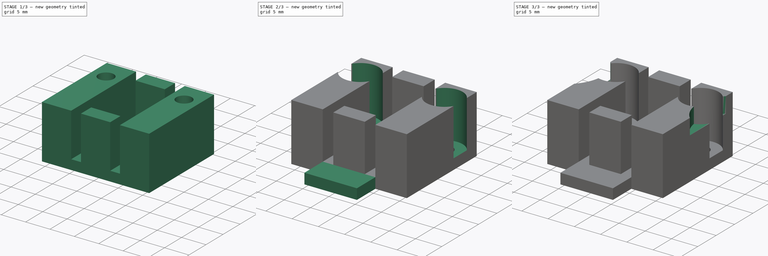
[diagram: build sequence overview — one tinted view per stage of 3, left to right]
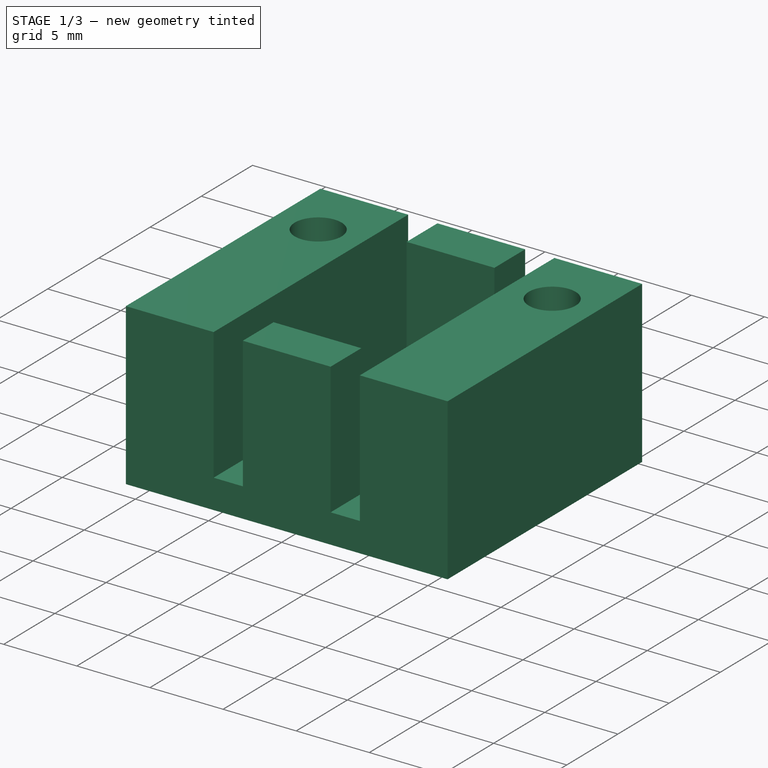
[diagram: stage 1 of 3 — iso view after this stage's code; geometry added in this stage tinted green]
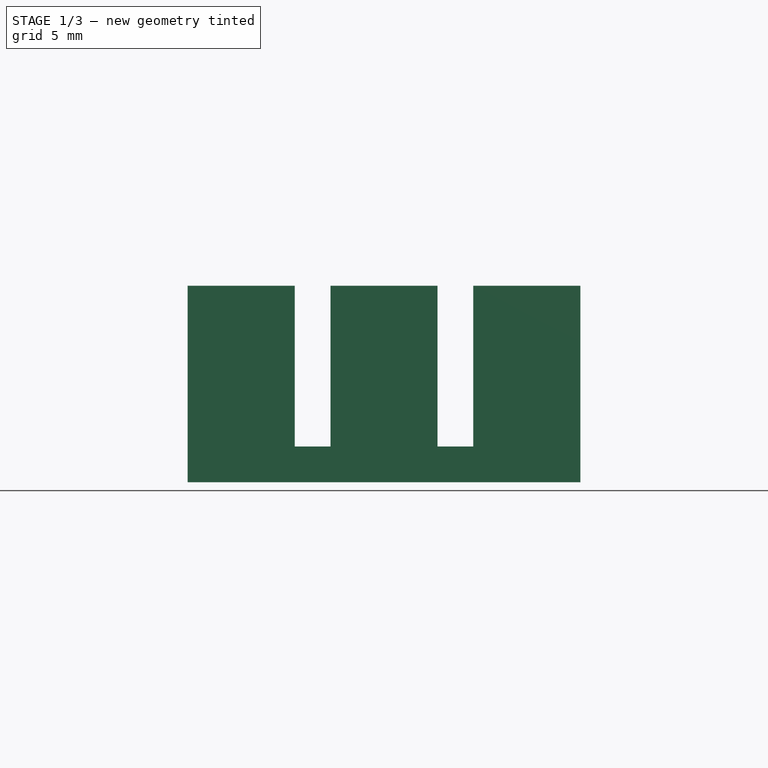
[diagram: stage 1 of 3 — front view after this stage's code; geometry added in this stage tinted green]
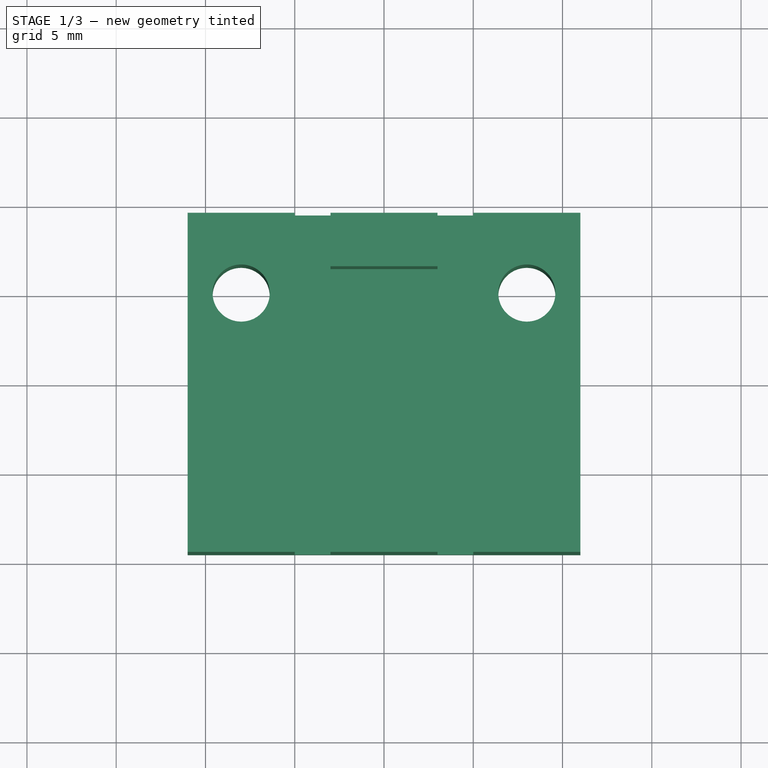
[diagram: stage 1 of 3 — top view after this stage's code; geometry added in this stage tinted green]
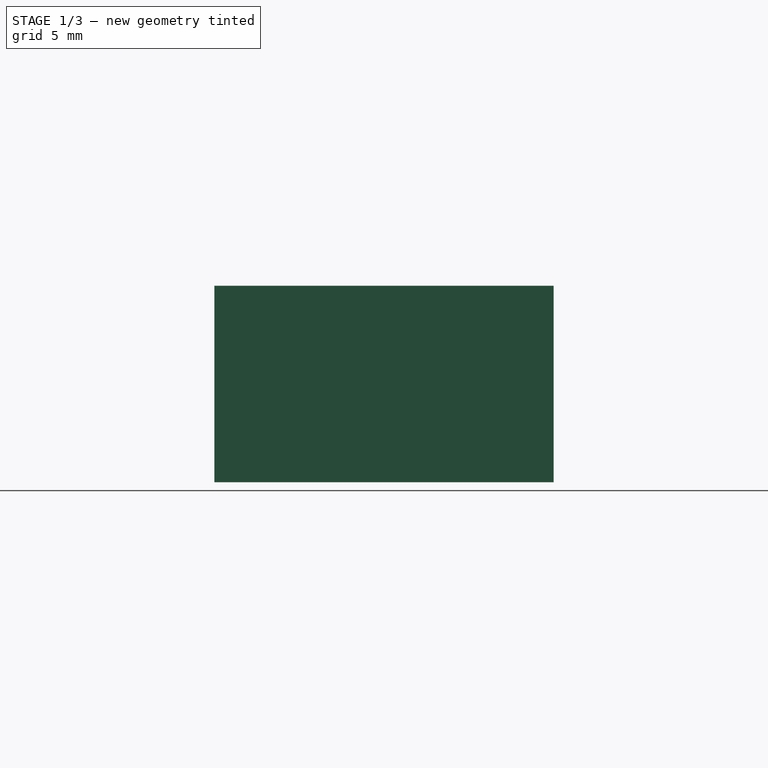
[diagram: stage 1 of 3 — right view after this stage's code; geometry added in this stage tinted green]
FCSTD DOCUMENT  (FreeCAD 0.18R15441 (Git))
Label: XEndstopClip1
License: All rights reserved
LicenseURL: http://en.wikipedia.org/wiki/All_rights_reserved
objects: Sketcher::SketchObject×6, PartDesign::Pocket×4, PartDesign::Pad×2, PartDesign::Plane×1, PartDesign::Body×1, Part::FeaturePython×1, App::Part×1
note: 21 computed .brp shape members not serialized (recipe doc carries the construction recipe); baked Part::Feature solids carry a one-line shape summary decoded from their .brp

FEATURE [Sketcher::SketchObject] Sketch  label="BaseSketch"
  MapMode = 5
  Support = -> [XY_Plane001]
  sketch-geometry (6):
    g0: Circle CenterX=-8 CenterY=5 CenterZ=0 NormalX=0 NormalY=0 NormalZ=1 AngleXU=0 Radius=1.6
    g1: Circle CenterX=8 CenterY=5 CenterZ=0 NormalX=0 NormalY=0 NormalZ=1 AngleXU=0 Radius=1.6
    g2: LineSegment StartX=-11 StartY=9.5 StartZ=0 EndX=11 EndY=9.5 EndZ=0
    g3: LineSegment StartX=11 StartY=9.5 StartZ=0 EndX=11 EndY=-9.5 EndZ=0
    g4: LineSegment StartX=11 StartY=-9.5 StartZ=0 EndX=-11 EndY=-9.5 EndZ=0
    g5: LineSegment StartX=-11 StartY=-9.5 StartZ=0 EndX=-11 EndY=9.5 EndZ=0
  constraints (15):
    c: Symmetric(g0,g1,g-2)
    c: Equal(g0,g1)
    c: Radius(g0) = 1.6
    c: Distance(g0,g1) = 16
    c: Coincident(g2,g3)
    c: Coincident(g3,g4)
    c: Coincident(g4,g5)
    c: Coincident(g5,g2)
    c: Horizontal(g4)
    c: Vertical(g3)
    c: Symmetric(g2,g4,g-1)
    c: Distance(g5) = 19
    c: Symmetric(g2,g2,g-2)
    c: Distance(g2) = 22
    c: DistanceY(g-1,g0) = 5
FEATURE [PartDesign::Pad] Pad  label="BasePad"
  Length = 9
  Length2 = 2
  Profile = -> Sketch
  Type = 4
FEATURE [Sketcher::SketchObject] Sketch001  label="EndstopSketch"
  ExternalGeometry = -> [Sketch]
  MapMode = 5
  Support = -> [XY_Plane001]
  sketch-geometry (14):
    g0: LineSegment StartX=-5 StartY=9.5 StartZ=0 EndX=-5 EndY=-9.5 EndZ=0
    g1: LineSegment StartX=-5 StartY=9.5 StartZ=0 EndX=-3 EndY=9.5 EndZ=0
    g2: LineSegment StartX=-3 StartY=9.5 StartZ=0 EndX=-3 EndY=6.5 EndZ=0
    g3: LineSegment StartX=-3 StartY=6.5 StartZ=0 EndX=3 EndY=6.5 EndZ=0
    g4: LineSegment StartX=3 StartY=6.5 StartZ=0 EndX=3 EndY=9.5 EndZ=0
    g5: LineSegment StartX=3 StartY=9.5 StartZ=0 EndX=5 EndY=9.5 EndZ=0
    g6: LineSegment StartX=5 StartY=9.5 StartZ=0 EndX=5 EndY=-9.5 EndZ=0
    g7: LineSegment StartX=3 StartY=-9.5 StartZ=0 EndX=3 EndY=-6.5 EndZ=0
    g8: LineSegment StartX=3 StartY=-6.5 StartZ=0 EndX=-3 EndY=-6.5 EndZ=0
    g9: LineSegment StartX=-3 StartY=-6.5 StartZ=0 EndX=-3 EndY=-9.5 EndZ=0
    g10: LineSegment StartX=-3 StartY=-9.5 StartZ=0 EndX=3 EndY=-9.5 EndZ=0
    g11: LineSegment StartX=-5 StartY=-9.5 StartZ=0 EndX=-5 EndY=-14.5 EndZ=0
    g12: LineSegment StartX=-5 StartY=-14.5 StartZ=0 EndX=5 EndY=-14.5 EndZ=0
    g13: LineSegment StartX=5 StartY=-14.5 StartZ=0 EndX=5 EndY=-9.5 EndZ=0
  constraints (39):
    c: Coincident(g1,g0)
    c: Coincident(g2,g1)
    c: Vertical(g2)
    c: Coincident(g3,g2)
    c: Horizontal(g3)
    c: Coincident(g4,g3)
    c: Vertical(g4)
    c: Coincident(g5,g4)
    c: Horizontal(g5)
    c: Coincident(g6,g5)
    c: Vertical(g6)
    c: Coincident(g8,g7)
    c: Horizontal(g8)
    c: Coincident(g9,g8)
    c: Vertical(g9)
    c: Symmetric(g7,g3,g-1)
    c: Vertical(g7)
    c: Symmetric(g0,g0,g-1)
    c: Equal(g2,g4)
    c: Equal(g4,g7)
    c: Equal(g7,g9)
    c: Distance(g1) = 2
    c: Distance(g3) = 6
    c: Symmetric(g0,g5,g-2)
    c: PointOnObject(g0,g-3)
    c: Distance(g2,g8) = 13
    c: Equal(g1,g5)
    c: Coincident(g10,g9)
    c: Coincident(g10,g7)
    c: Equal(g0,g6)
    c: Coincident(g11,g0)
    c: Vertical(g11)
    c: Coincident(g12,g11)
    c: Horizontal(g12)
    c: Coincident(g13,g12)
    c: Coincident(g13,g6)
    c: Vertical(g13)
    c: Equal(g3,g8)
    c: Distance(g11) = 5
FEATURE [PartDesign::Pocket] Pocket  label="EndstopPocket"
  BaseFeature = -> Pad
  Length = 5
  Length2 = 100
  Profile = -> Sketch001
  Reversed = true
  Type = 1
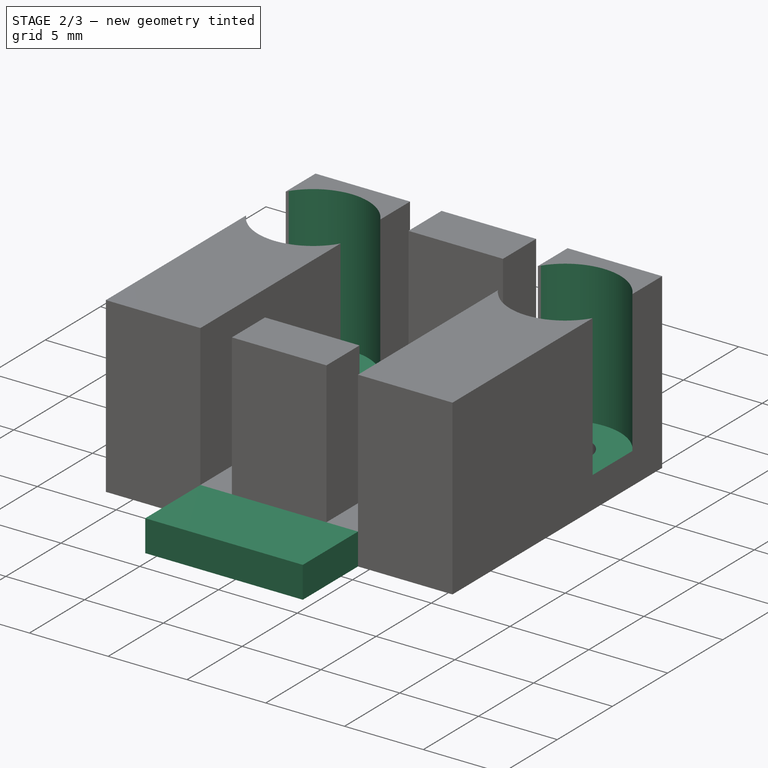
[diagram: stage 2 of 3 — iso view after this stage's code; geometry added in this stage tinted green]
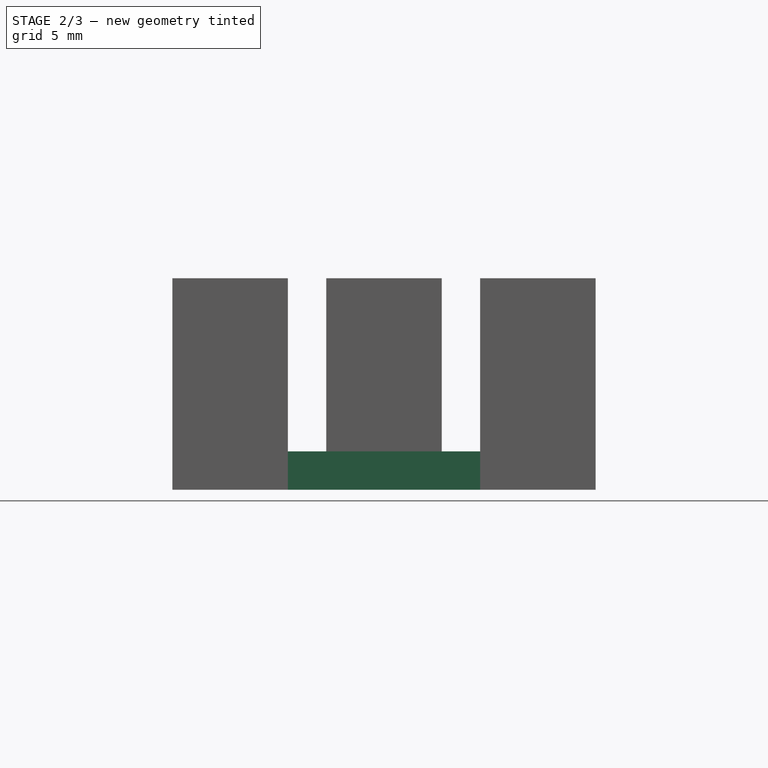
[diagram: stage 2 of 3 — front view after this stage's code; geometry added in this stage tinted green]
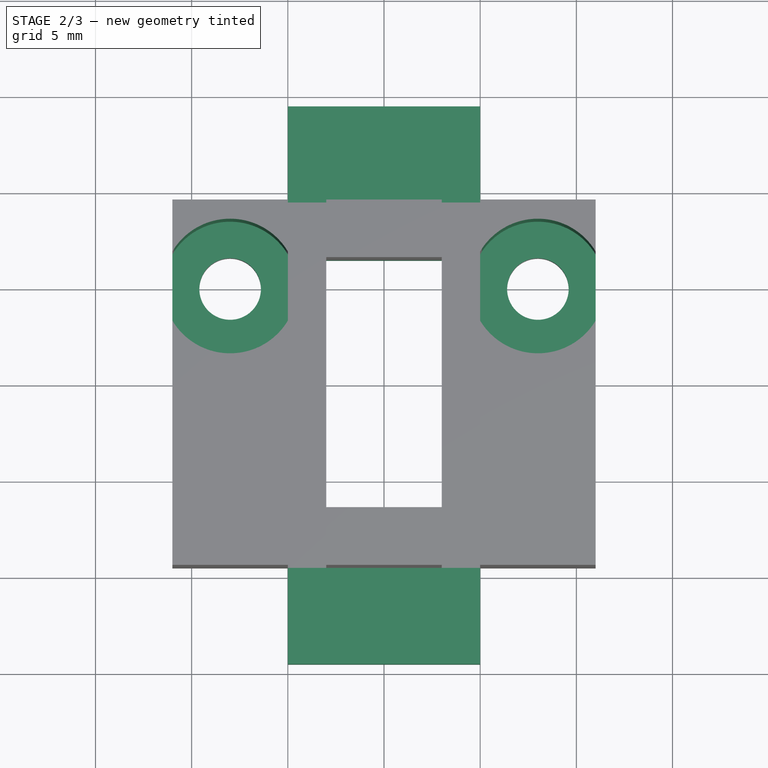
[diagram: stage 2 of 3 — top view after this stage's code; geometry added in this stage tinted green]
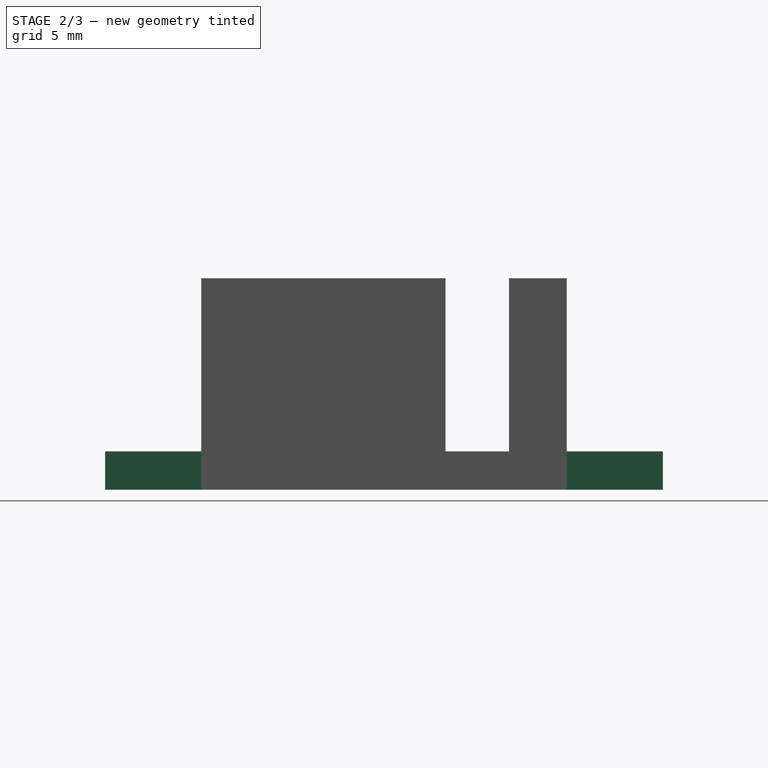
[diagram: stage 2 of 3 — right view after this stage's code; geometry added in this stage tinted green]
FEATURE [Sketcher::SketchObject] Sketch002  label="WiresCutSketch"
  ExternalGeometry = -> [Sketch001]
  MapMode = 5
  Support = -> [XY_Plane001]
  sketch-geometry (4):
    g0: LineSegment StartX=-3 StartY=6.5 StartZ=0 EndX=3 EndY=6.5 EndZ=0
    g1: LineSegment StartX=3 StartY=6.5 StartZ=0 EndX=3 EndY=-6.5 EndZ=0
    g2: LineSegment StartX=3 StartY=-6.5 StartZ=0 EndX=-3 EndY=-6.5 EndZ=0
    g3: LineSegment StartX=-3 StartY=-6.5 StartZ=0 EndX=-3 EndY=6.5 EndZ=0
  constraints (10):
    c: Coincident(g0,g1)
    c: Coincident(g1,g2)
    c: Coincident(g2,g3)
    c: Coincident(g3,g0)
    c: Horizontal(g0)
    c: Horizontal(g2)
    c: Vertical(g1)
    c: Vertical(g3)
    c: Coincident(g0,g-3)
    c: Coincident(g1,g-4)
FEATURE [PartDesign::Pocket] Pocket001  label="WiresCutPocket"
  BaseFeature = -> Pocket
  Length = 5
  Length2 = 100
  Profile = -> Sketch002
  Type = 1
FEATURE [Sketcher::SketchObject] Sketch003  label="ScrewStopSketch"
  ExternalGeometry = -> [Sketch001]
  MapMode = 5
  Support = -> [XY_Plane001]
  sketch-geometry (8):
    g0: LineSegment StartX=-5 StartY=-14.5 StartZ=0 EndX=5 EndY=-14.5 EndZ=0
    g1: LineSegment StartX=5 StartY=-14.5 StartZ=0 EndX=5 EndY=-9.5 EndZ=0
    g2: LineSegment StartX=5 StartY=-9.5 StartZ=0 EndX=-5 EndY=-9.5 EndZ=0
    g3: LineSegment StartX=-5 StartY=-9.5 StartZ=0 EndX=-5 EndY=-14.5 EndZ=0
    g4: LineSegment StartX=-5 StartY=14.5 StartZ=0 EndX=5 EndY=14.5 EndZ=0
    g5: LineSegment StartX=5 StartY=14.5 StartZ=0 EndX=5 EndY=9.5 EndZ=0
    g6: LineSegment StartX=5 StartY=9.5 StartZ=0 EndX=-5 EndY=9.5 EndZ=0
    g7: LineSegment StartX=-5 StartY=9.5 StartZ=0 EndX=-5 EndY=14.5 EndZ=0
  constraints (21):
    c: Coincident(g0,g1)
    c: Coincident(g1,g2)
    c: Coincident(g2,g3)
    c: Coincident(g3,g0)
    c: Horizontal(g2)
    c: Vertical(g1)
    c: Coincident(g4,g5)
    c: Coincident(g5,g6)
    c: Coincident(g6,g7)
    c: Coincident(g7,g4)
    c: Horizontal(g4)
    c: Vertical(g5)
    c: Vertical(g7)
    c: Symmetric(g2,g6,g-1)
    c: Distance(g7) = 5
    c: Vertical(g3)
    c: Horizontal(g0)
    c: Equal(g5,g1)
    c: Equal(g2,g6)
    c: Coincident(g6,g-3)
    c: Symmetric(g6,g5,g-2)
FEATURE [PartDesign::Pad] Pad001  label="ScrewStopPad"
  BaseFeature = -> Pocket001
  Length = 2
  Length2 = 100
  Profile = -> Sketch003
  Reversed = true
  Type = 0
FEATURE [Sketcher::SketchObject] Sketch004  label="ScewsCutSketch"
  ExternalGeometry = -> [Sketch]
  MapMode = 5
  Support = -> [XY_Plane001]
  sketch-geometry (2):
    g0: Circle CenterX=-8 CenterY=5 CenterZ=0 NormalX=0 NormalY=0 NormalZ=1 AngleXU=0 Radius=3.5
    g1: Circle CenterX=8 CenterY=5 CenterZ=0 NormalX=0 NormalY=0 NormalZ=1 AngleXU=0 Radius=3.5
  constraints (4):
    c: Coincident(g0,g-3)
    c: Coincident(g1,g-4)
    c: Equal(g0,g1)
    c: Radius(g0) = 3.5
FEATURE [PartDesign::Pocket] Pocket002  label="ScewsPocket"
  BaseFeature = -> Pad001
  Length = 5
  Length2 = 100
  Profile = -> Sketch004
  Reversed = true
  Type = 1
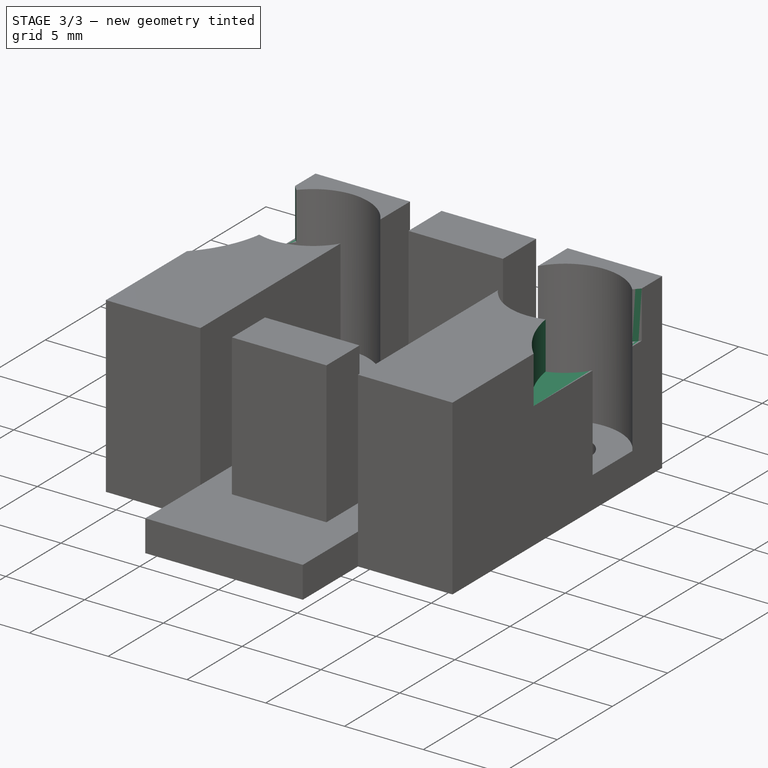
[diagram: stage 3 of 3 — iso view after this stage's code; geometry added in this stage tinted green]
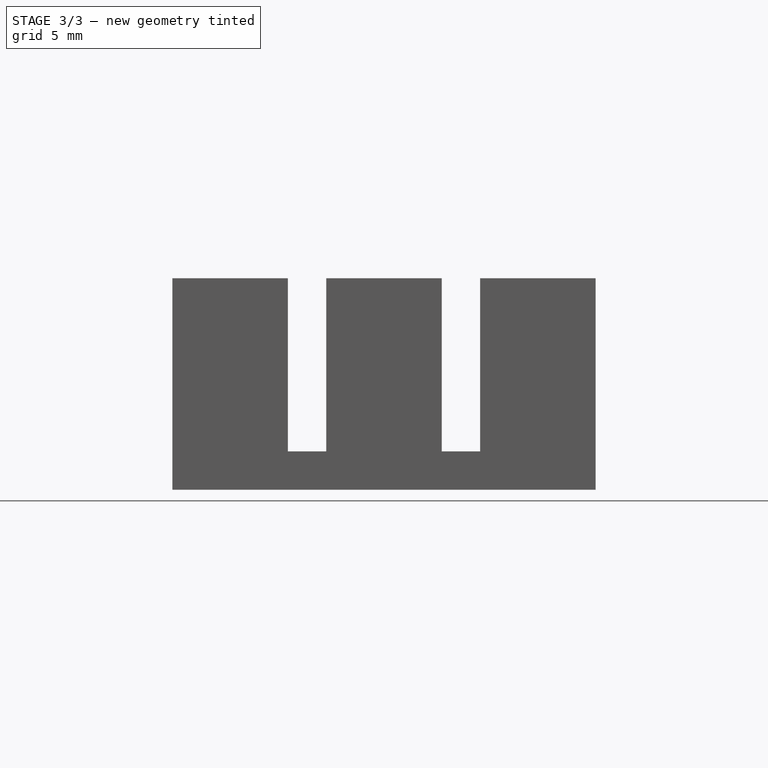
[diagram: stage 3 of 3 — front view after this stage's code; geometry added in this stage tinted green]
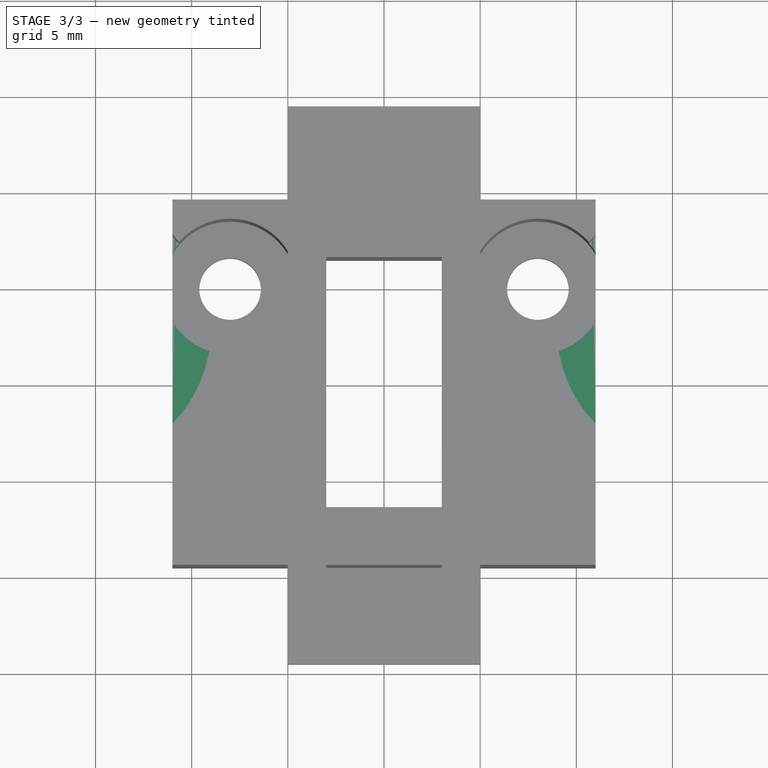
[diagram: stage 3 of 3 — top view after this stage's code; geometry added in this stage tinted green]
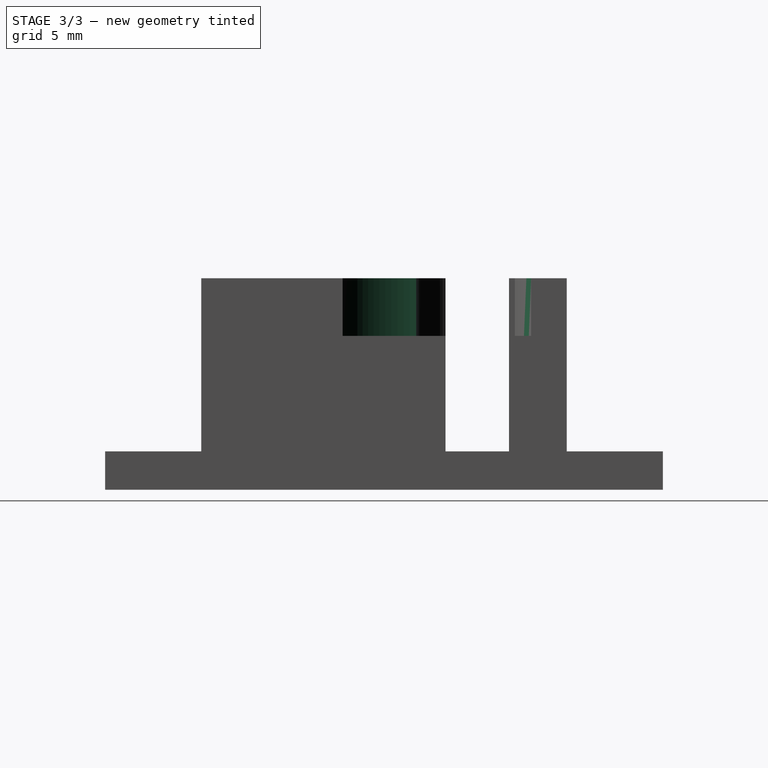
[diagram: stage 3 of 3 — right view after this stage's code; geometry added in this stage tinted green]
FEATURE [PartDesign::Plane] DatumPlane  label="CarriageLinearBearingsNotchPlane"
  AttachmentOffset = pos=(0,0,6) rot=(0,0,1;0rad)
  Length = 27.0517
  MapMode = 5
  Placement = pos=(0,0,6) rot=(0,0,1;0rad)
  ResizeMode = 0
  Support = -> [XY_Plane001]
  Width = 34.0517
FEATURE [Sketcher::SketchObject] Sketch005  label="CarriageLinearBearingsNotchSketch"
  MapMode = 5
  Placement = pos=(0,0,6) rot=(0,0,1;0rad)
  Support = -> [DatumPlane]
  sketch-geometry (2):
    g0: Circle CenterX=-16 CenterY=2.75 CenterZ=0 NormalX=0 NormalY=0 NormalZ=1 AngleXU=0 Radius=7
    g1: Circle CenterX=16 CenterY=2.75 CenterZ=0 NormalX=0 NormalY=0 NormalZ=1 AngleXU=0 Radius=7
  constraints (5):
    c: DistanceY(g-1,g0) = 2.75
    c: DistanceX(g-2,g0) = -16
    c: Symmetric(g0,g1,g-2)
    c: Equal(g0,g1)
    c: Radius(g0) = 7
FEATURE [PartDesign::Pocket] Pocket003  label="CarriageLinearBearingsNotchPocket"
  BaseFeature = -> Pocket002
  Length = 5
  Length2 = 100
  Profile = -> Sketch005
  Reversed = true
  Type = 0
FEATURE [PartDesign::Body] Body  label="ClipBody"
  Group = -> [Sketch,Pad,Sketch001,Pocket,Sketch002,Pocket001,Sketch003,Pad001,Sketch004,Pocket002,DatumPlane,Sketch005,Pocket003]
  Origin = -> Origin001
  Tip = -> Pocket003
FEATURE [Part::FeaturePython] refine  label="ClipBody_Refined"  # WARN: FeaturePython — macro-defined, semantics opaque (R4)
  Base = -> Body
FEATURE [App::Part] Part  label="XEndstopClip1Part"
  Group = -> [Body,refine]
  License = CC BY 3.0
  LicenseURL = http://creativecommons.org/licenses/by/3.0/
  Origin = -> Origin
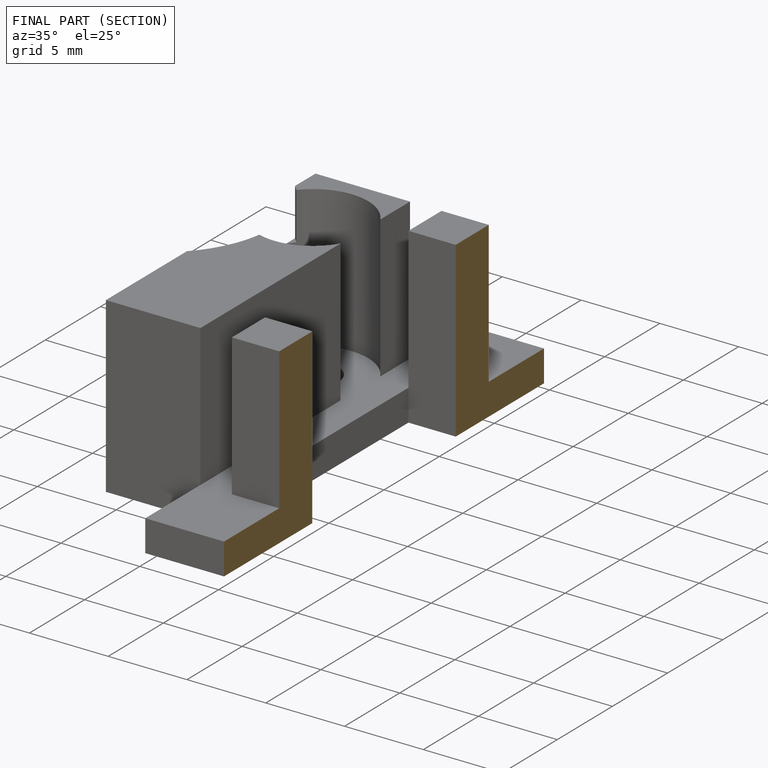
[diagram: finished part — half-section view (interior)]
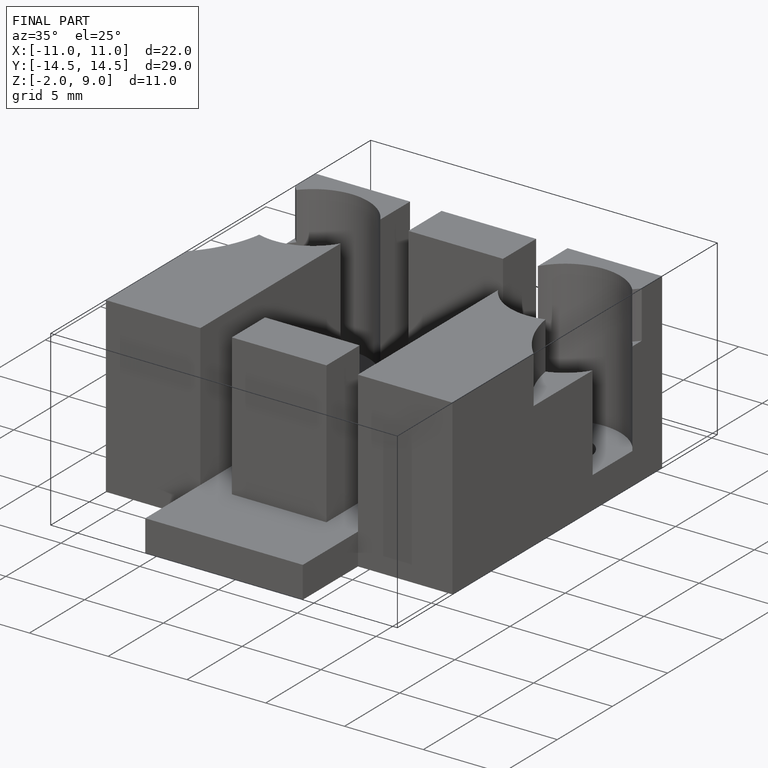
[diagram: finished part — iso view with bounding-box wireframe]
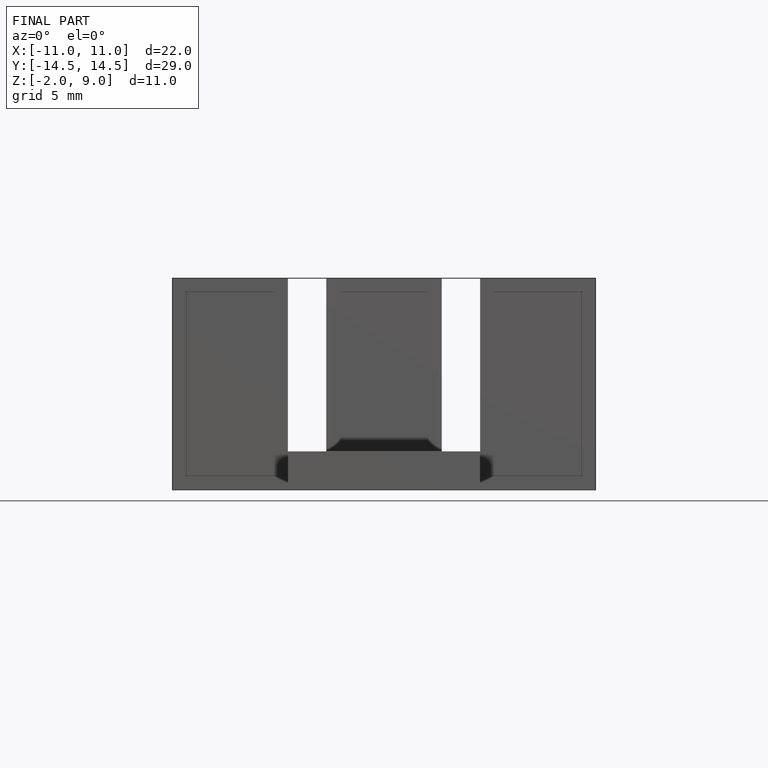
[diagram: finished part — front view with bounding-box wireframe]
